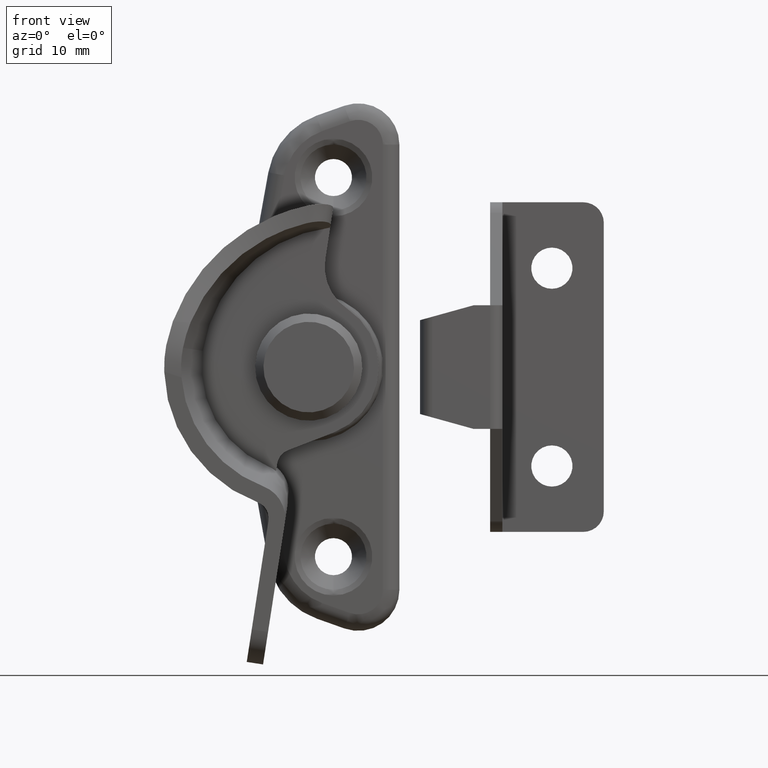
[diagram: clean part render]
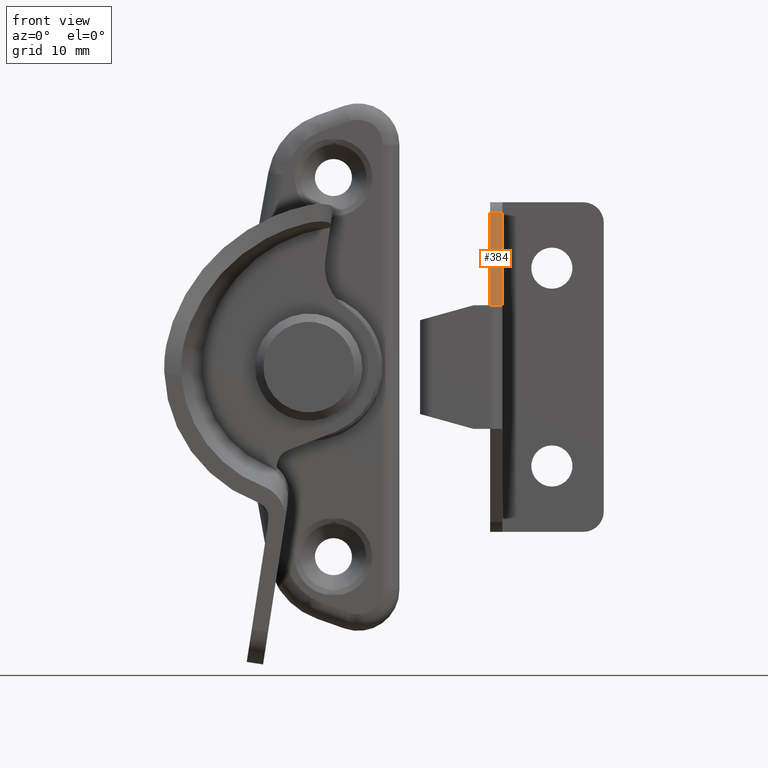
[diagram: same view with one face highlighted and labeled with its STEP entity id]
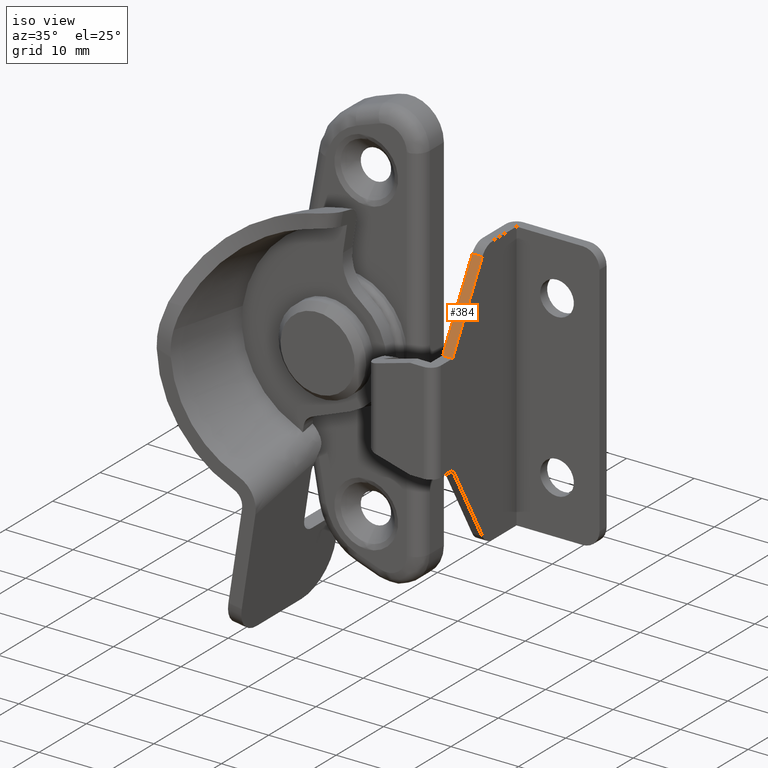
[diagram: same view with one face highlighted and labeled with its STEP entity id]
A machine part, front view. The second image highlights one B-rep face of the part: STEP entity #384.
A second angle (iso view) of the same face is appended — the face is thin or edge-on in the first view.
In plain terms, the highlighted planar face has unit normal (0, 0.8725, -0.4886).
Its self-contained STEP definition (entity closure, byte-faithful):
#384=ADVANCED_FACE('',(#2397),#2396,.F.);
#2396=PLANE('',#4384);
#2397=FACE_OUTER_BOUND('',#4385,.T.);
#4381=CARTESIAN_POINT('',(1.21499880000E+01,-8.08752953873E+00,-1.98436597993E+01));
#4382=DIRECTION('',(0.00000000000E+00,8.72505907058E-01,4.88603563382E-01));
#4383=DIRECTION('',(0.00000000000E+00,-4.88603563382E-01,8.72505907058E-01));
#4384=AXIS2_PLACEMENT_3D('',#4381,#4382,#4383);
#4385=EDGE_LOOP('',(#5475,#5476,#5477,#5478));
#5475=ORIENTED_EDGE('',*,*,#6087,.T.);
#5476=ORIENTED_EDGE('',*,*,#6077,.F.);
#5477=ORIENTED_EDGE('',*,*,#6075,.F.);
#5478=ORIENTED_EDGE('',*,*,#6088,.T.);
#6075=EDGE_CURVE('',#9470,#9421,#9477,.T.);
#6077=EDGE_CURVE('',#9421,#9489,#9490,.T.);
#6087=EDGE_CURVE('',#9554,#9489,#9555,.T.);
#6088=EDGE_CURVE('',#9470,#9554,#9561,.T.);
#9421=VERTEX_POINT('',#11964);
#9470=VERTEX_POINT('',#11993);
#9477=LINE('',#11998,#11999);
#9489=VERTEX_POINT('',#12005);
#9490=LINE('',#12006,#12007);
#9554=VERTEX_POINT('',#12042);
#9555=LINE('',#12043,#12044);
#9561=LINE('',#12046,#12047);
#11964=CARTESIAN_POINT('',(1.22999880000E+01,-1.49999826400E+01,-7.50000000000E+00));
#11993=CARTESIAN_POINT('',(1.22999880000E+01,-8.71593436612E+00,-1.87215089085E+01));
#11998=CARTESIAN_POINT('',(1.22999880000E+01,-8.71593436612E+00,-1.87215089085E+01));
#11999=VECTOR('',#12000,1.28612411878E+01);
#12000=DIRECTION('',(0.00000000000E+00,-4.88603563382E-01,8.72505907058E-01));
#12005=CARTESIAN_POINT('',(1.37999880000E+01,-1.49999826400E+01,-7.50000000000E+00));
#12006=CARTESIAN_POINT('',(1.22999880000E+01,-1.49999826400E+01,-7.50000000000E+00));
#12007=VECTOR('',#12008,1.50000000000E+00);
#12008=DIRECTION('',(1.00000000000E+00,0.00000000000E+00,0.00000000000E+00));
#12042=CARTESIAN_POINT('',(1.37999880000E+01,-8.71593436612E+00,-1.87215089085E+01));
#12043=CARTESIAN_POINT('',(1.37999880000E+01,-8.71593436612E+00,-1.87215089085E+01));
#12044=VECTOR('',#12045,1.28612411878E+01);
#12045=DIRECTION('',(0.00000000000E+00,-4.88603563382E-01,8.72505907058E-01));
#12046=CARTESIAN_POINT('',(1.22999880000E+01,-8.71593436612E+00,-1.87215089085E+01));
#12047=VECTOR('',#12048,1.50000000000E+00);
#12048=DIRECTION('',(1.00000000000E+00,0.00000000000E+00,0.00000000000E+00));